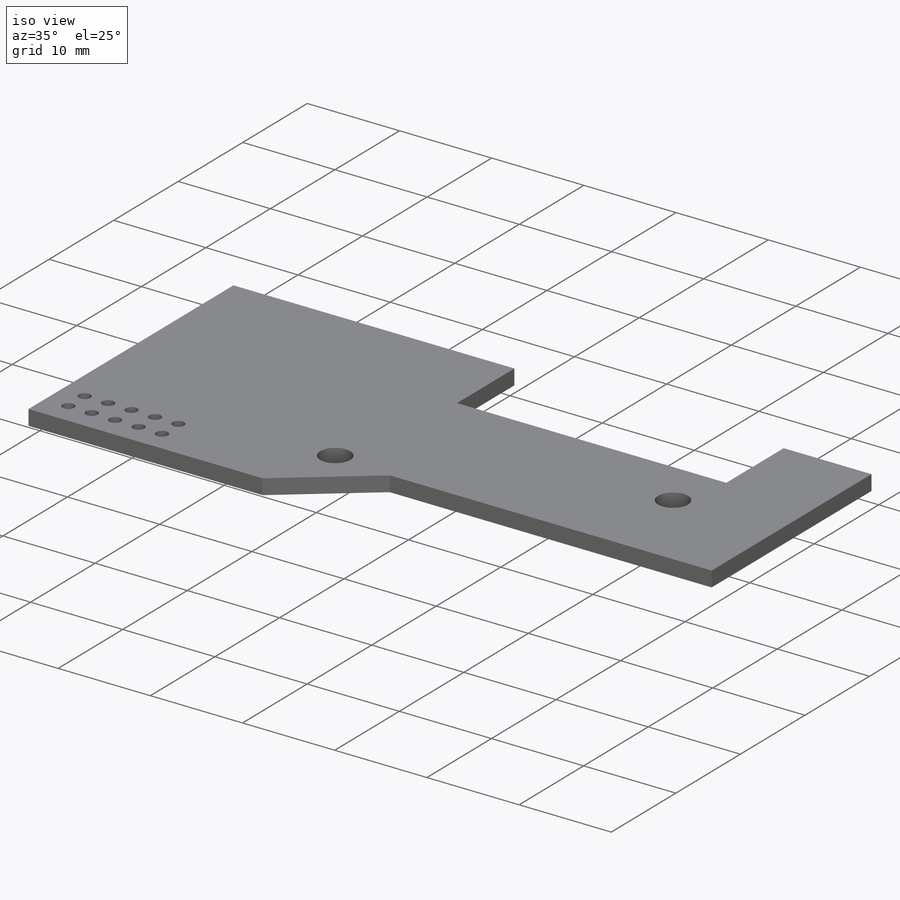
[diagram: iso view]
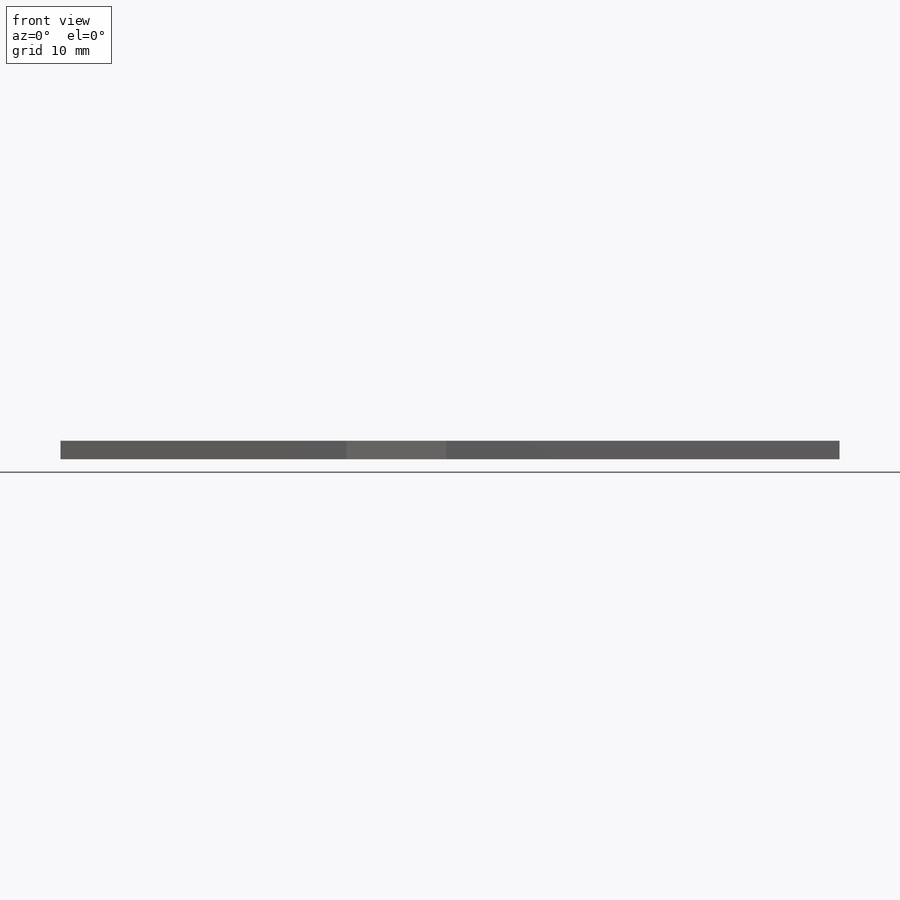
[diagram: front view]
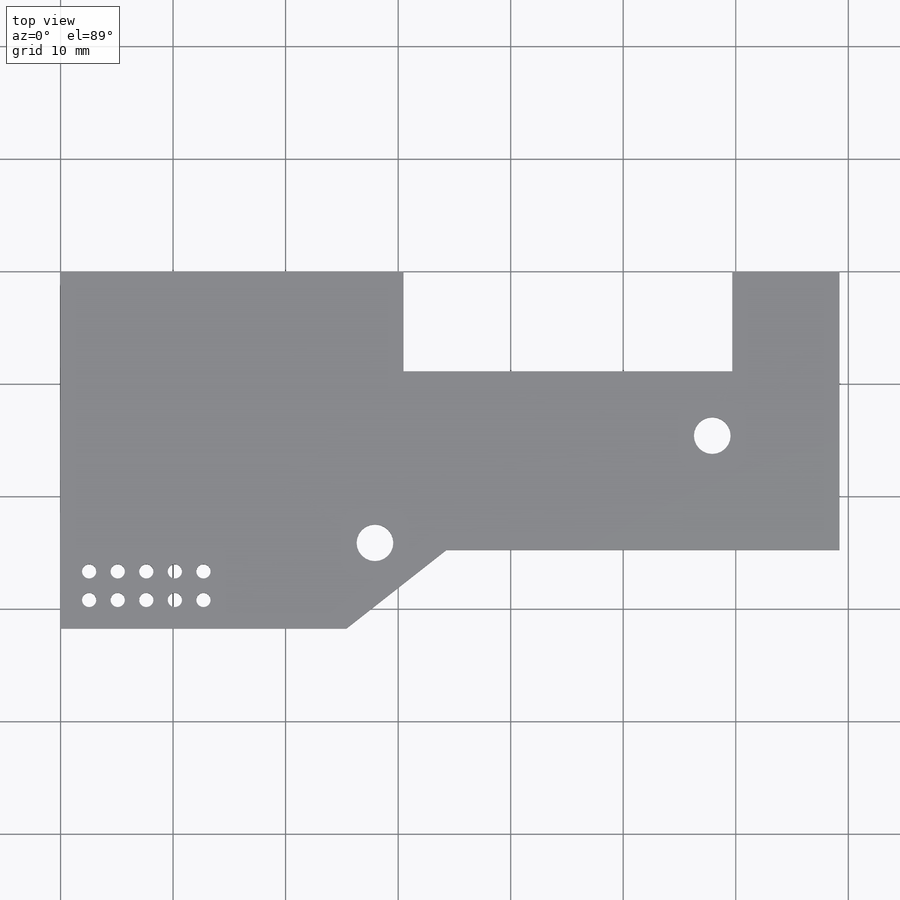
[diagram: top view]
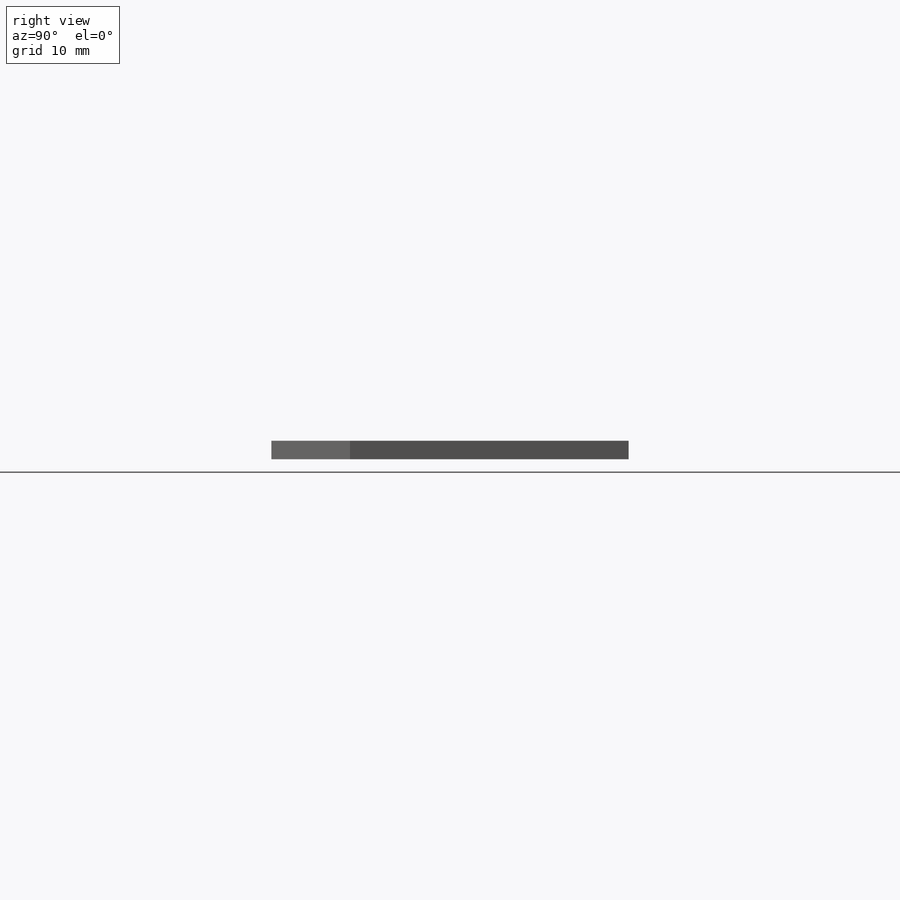
[diagram: right view]
SOLIDWORKS PART (.sldprt)
format: sldprt  version: not decoded by parser v0  size: 396,800 bytes
history: native  units: mm
features: sketch x4, material x1, extrude x1, cut_extrude x1, hole x1 (+14 scaffold rows collapsed)
feature tree (22):
  scaffold x14  (default folders/planes/origin — collapsed)
  material  "Material <not specified>"
  sketch  "Sketch1"  dims[c1.D2=6.35mm c1.D1=30.48mm c2.D2=38.1mm c2.D3=6.35mm c2.D4=6.35mm c2.D5=15.875mm c2.D6=22.225mm c3.D3=13.97mm c3.D4=8.89mm c3.D5=31.75mm c3.D6=15.875mm c3.D7=88.9mm c3.D2=9.525mm c4.D7=34.29mm c4.D3=25.4mm]
  extrude  "Boss-Extrude1"  Depth=1.651mm
  sketch  "Sketch5"  dims[c1.D1=1.27mm c1.D4=1.27mm c1.D5=1.27mm c1.D6=1.27mm c2.D4=2.54mm c2.D5=2.54mm c2.D6=2.54mm c2.D7=3.048mm c3.D6=2.54mm c3.D7=3.175mm c4.D6=1.905mm c4.D7=1.905mm c5.D6=7.62mm c5.D7=3.81mm c5.D2=5.0 c5.D3=2.0]
  cut_extrude  "Cut-Extrude2"  [1 undecoded]
  hole  "#4 Clearance Hole1"  Diameter=3.2639mm Depth=1.651mm
  sketch  "Sketch8"  dims[c1.D1=2.54mm c1.D2=2.54mm c1.D3=2.54mm c1.D4=2.54mm c2.D3=3.937mm c2.D1=27.94mm c2.D2=7.62mm c3.D3=57.912mm c3.D4=17.145mm]
  sketch  "Sketch7"  dims[hole-wizard template sketch: 60 standard entries collapsed; hole parameters kept: c18.Thru Hole Depth=1.651mm]
decode coverage: 6 of 7 modeling features carry decoded parameters
note: ~ marks probable driven/reference dimensions
note: 1 parameter value undecoded
note: suppression state not decoded; provenance and decode notes live in map.json
